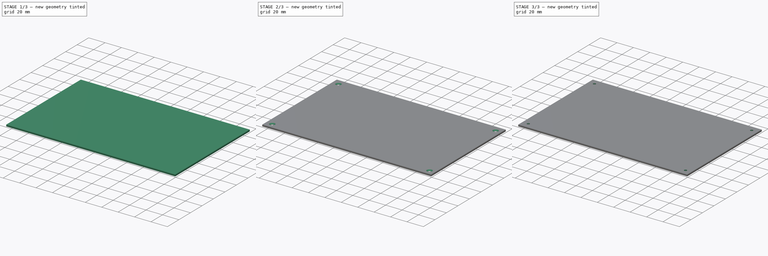
[diagram: build sequence overview — one tinted view per stage of 3, left to right]
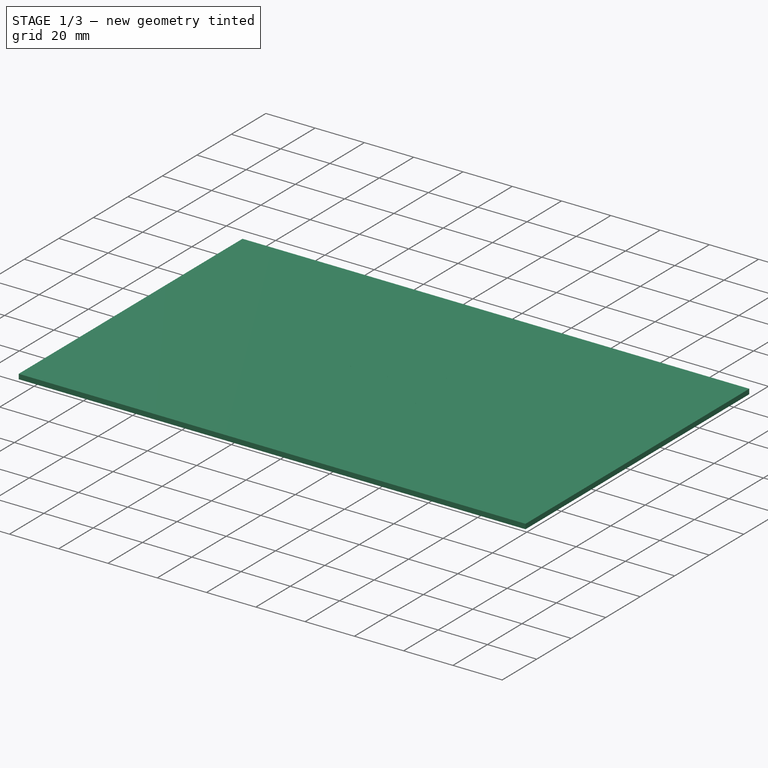
[diagram: stage 1 of 3 — iso view after this stage's code; geometry added in this stage tinted green]
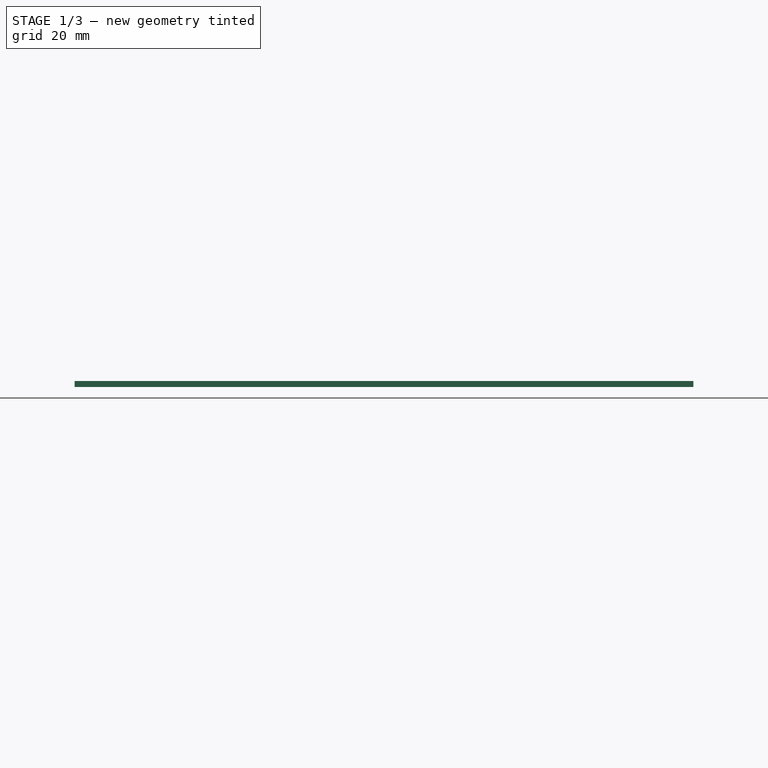
[diagram: stage 1 of 3 — front view after this stage's code; geometry added in this stage tinted green]
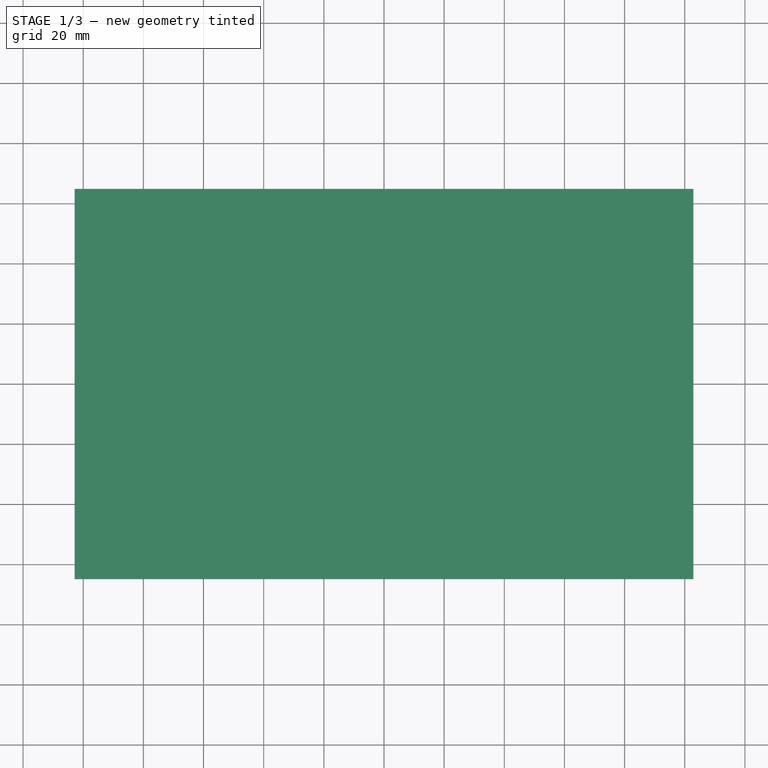
[diagram: stage 1 of 3 — top view after this stage's code; geometry added in this stage tinted green]
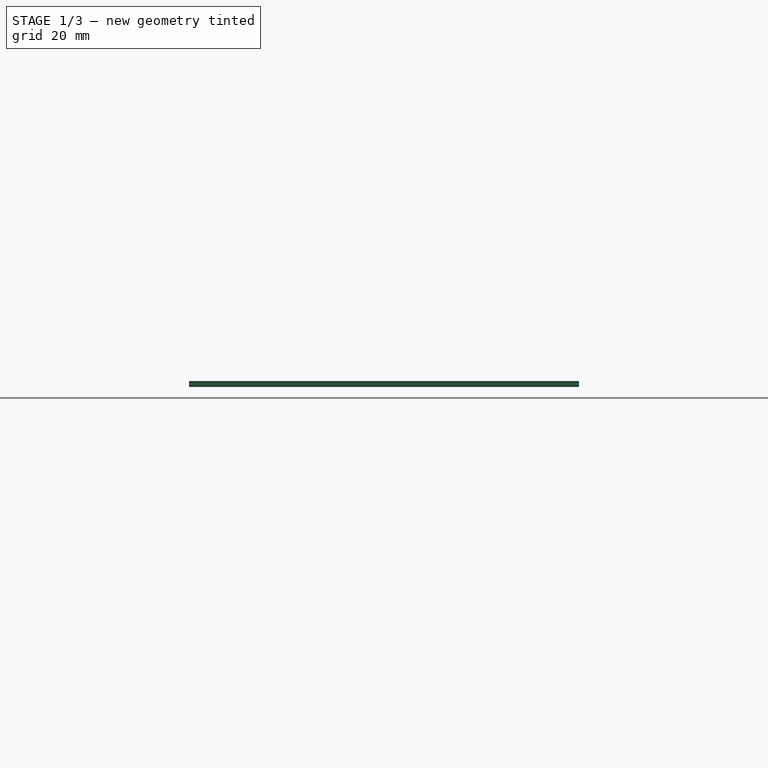
[diagram: stage 1 of 3 — right view after this stage's code; geometry added in this stage tinted green]
FCSTD DOCUMENT  (FreeCAD 0.20R29410 (Git))
Label: PC-11491
License: All rights reserved
LicenseURL: http://en.wikipedia.org/wiki/All_rights_reserved
objects: Sketcher::SketchObject×4, PartDesign::Pad×2, PartDesign::Body×2, PartDesign::Hole×1, PartDesign::Fillet×1, PartDesign::Chamfer×1, PartDesign::Pocket×1
note: 18 computed .brp shape members not serialized (recipe doc carries the construction recipe); baked Part::Feature solids carry a one-line shape summary decoded from their .brp

FEATURE [Sketcher::SketchObject] Sketch  label="Face"
  FullyConstrained = true
  MapMode = 5
  Support = -> [XY_Plane]
  sketch-geometry (4):
    g0: LineSegment StartX=-102.85 StartY=64.85 StartZ=0 EndX=102.85 EndY=64.85 EndZ=0
    g1: LineSegment StartX=-102.85 StartY=64.85 StartZ=0 EndX=-102.85 EndY=-64.85 EndZ=0
    g2: LineSegment StartX=-102.85 StartY=-64.85 StartZ=0 EndX=102.85 EndY=-64.85 EndZ=0
    g3: LineSegment StartX=102.85 StartY=-64.85 StartZ=0 EndX=102.85 EndY=64.85 EndZ=0
  constraints (11):
    c: Horizontal(g2)
    c: Coincident(g0,g1)
    c: Coincident(g1,g2)
    c: Coincident(g2,g3)
    c: Coincident(g3,g0)
    c: Vertical(g3)
    c: Vertical(g1)
    c: Horizontal(g0)
    c: DistanceX(g0,g0) = 205.7  'PlateWidth'
    c: DistanceY(g1,g0) = 129.7  'PlateHeight'
    c: Symmetric(g0,g2,g-1)
FEATURE [PartDesign::Pad] Pad  label="Panel"
  Direction = (0,0,1)
  Length = 2
  Length2 = 10
  Profile = -> Sketch
  ReferenceAxis = -> Sketch [N_Axis]
  Type = 0
FEATURE [PartDesign::Body] Body
  Group = -> [Sketch,Pad,Sketch001,Hole,Fillet,Chamfer,Sketch002,Pocket]
  Origin = -> Origin
  Tip = -> Pocket
FEATURE [Sketcher::SketchObject] Sketch003
  FullyConstrained = true
  MapMode = 5
  Support = -> [XY_Plane001]
  sketch-geometry (19):
    g0: LineSegment StartX=-26.69 StartY=24.13 StartZ=0 EndX=26.69 EndY=24.13 EndZ=0
    g1: LineSegment StartX=26.69 StartY=24.13 StartZ=0 EndX=26.69 EndY=-24.13 EndZ=0
    g2: LineSegment StartX=26.69 StartY=-24.13 StartZ=0 EndX=-26.69 EndY=-24.13 EndZ=0
    g3: LineSegment StartX=-26.69 StartY=-24.13 StartZ=0 EndX=-26.69 EndY=24.13 EndZ=0
    g4: Circle CenterX=-17.4 CenterY=20 CenterZ=0 NormalX=0 NormalY=0 NormalZ=1 AngleXU=0 Radius=1.4
    g5: Circle CenterX=-7.42 CenterY=20 CenterZ=0 NormalX=0 NormalY=0 NormalZ=1 AngleXU=0 Radius=1.5
    g6: Circle CenterX=0 CenterY=20 CenterZ=0 NormalX=0 NormalY=0 NormalZ=1 AngleXU=0 Radius=1.6
    g7: Circle CenterX=-17.4 CenterY=-14 CenterZ=0 NormalX=0 NormalY=0 NormalZ=1 AngleXU=0 Radius=5.875
    g8: Circle CenterX=0 CenterY=-14 CenterZ=0 NormalX=0 NormalY=0 NormalZ=1 AngleXU=0 Radius=6
    g9: Circle CenterX=17.4 CenterY=-14 CenterZ=0 NormalX=0 NormalY=0 NormalZ=1 AngleXU=0 Radius=6.125
    g10: Circle CenterX=4.6 CenterY=11 CenterZ=0 NormalX=0 NormalY=0 NormalZ=1 AngleXU=0 Radius=3.4
    g11: Circle CenterX=17.4 CenterY=11 CenterZ=0 NormalX=0 NormalY=0 NormalZ=1 AngleXU=0 Radius=3.5
    g12: Circle CenterX=-17.4 CenterY=0 CenterZ=0 NormalX=0 NormalY=0 NormalZ=1 AngleXU=0 Radius=3.6
    g13: Circle CenterX=0 CenterY=0 CenterZ=0 NormalX=0 NormalY=0 NormalZ=1 AngleXU=0 Radius=3.75
    g14: Circle CenterX=17.4 CenterY=0 CenterZ=0 NormalX=0 NormalY=0 NormalZ=1 AngleXU=0 Radius=3.885
    g15: Circle CenterX=-6.4 CenterY=11 CenterZ=0 NormalX=0 NormalY=0 NormalZ=1 AngleXU=0 Radius=3.3
    g16: Circle CenterX=7.97 CenterY=20 CenterZ=0 NormalX=0 NormalY=0 NormalZ=1 AngleXU=0 Radius=2.4
    g17: Circle CenterX=17.4 CenterY=20 CenterZ=0 NormalX=0 NormalY=0 NormalZ=1 AngleXU=0 Radius=2.5
    g18: Circle CenterX=-17.4 CenterY=11 CenterZ=0 NormalX=0 NormalY=0 NormalZ=1 AngleXU=0 Radius=2.6
  constraints (55):
    c: Coincident(g0,g1)
    c: Coincident(g1,g2)
    c: Coincident(g2,g3)
    c: Coincident(g3,g0)
    c: Horizontal(g0)
    c: Horizontal(g2)
    c: Vertical(g1)
    c: Vertical(g3)
    c: Diameter(g4) = 2.8
    c: Diameter(g5) = 3
    c: Diameter(g6) = 3.2
    c: Diameter(g7) = 11.75
    c: Diameter(g8) = 12
    c: Diameter(g9) = 12.25
    c: Diameter(g10) = 6.8
    c: Diameter(g11) = 7
    c: Diameter(g12) = 7.2
    c: Diameter(g13) = 7.5
    c: Diameter(g14) = 7.77
    c: Diameter(g15) = 6.6
    c: Diameter(g16) = 4.8
    c: Diameter(g17) = 5
    c: Diameter(g18) = 5.2
    c: Horizontal(g4,g5)
    c: Horizontal(g5,g6)
    c: Horizontal(g6,g16)
    c: Horizontal(g16,g17)
    c: Horizontal(g18,g15)
    c: Horizontal(g15,g10)
    c: Horizontal(g10,g11)
    c: Horizontal(g12,g13)
    c: Horizontal(g13,g14)
    c: Horizontal(g7,g8)
    c: Horizontal(g8,g9)
    c: Vertical(g4,g18)
    c: Vertical(g18,g12)
    c: Vertical(g12,g7)
    c: Vertical(g6,g13)
    c: Vertical(g13,g8)
    c: Vertical(g17,g11)
    c: Vertical(g11,g14)
    c: Vertical(g9,g14)
    c: DistanceX(g7,g8) = 17.4
    c: DistanceX(g8,g9) = 17.4
    c: DistanceY(g7,g12) = 14
    c: DistanceY(g12,g18) = 11
    c: DistanceY(g18,g4) = 9
    c: Coincident(g13,g-1)
    c: DistanceX(g18,g15) = 11
    c: DistanceX(g15,g10) = 11
    c: DistanceX(g4,g5) = 9.98
    c: DistanceX(g6,g16) = 7.97
    c: Symmetric(g0,g1,g13)
    c: DistanceX(g0,g0) = 53.38
    c: DistanceY(g2,g0) = 48.26
FEATURE [PartDesign::Pad] Pad001
  Direction = (0,0,1)
  Length = 2
  Length2 = 10
  Profile = -> Sketch003
  ReferenceAxis = -> Sketch003 [N_Axis]
  Type = 0
FEATURE [PartDesign::Body] Body001  label="TestHoles"
  Group = -> [Sketch003,Pad001]
  Origin = -> Origin001
  Tip = -> Pad001
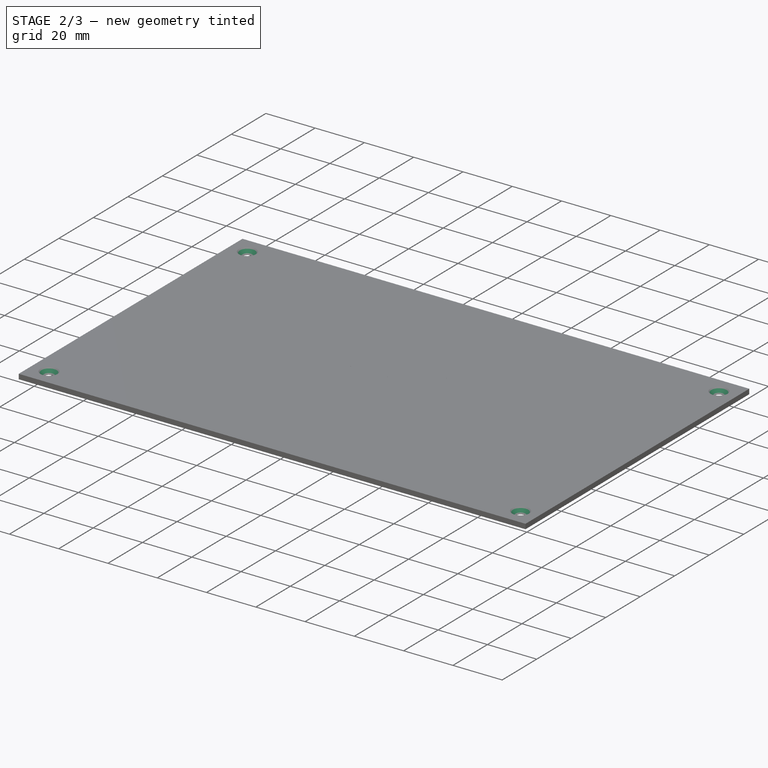
[diagram: stage 2 of 3 — iso view after this stage's code; geometry added in this stage tinted green]
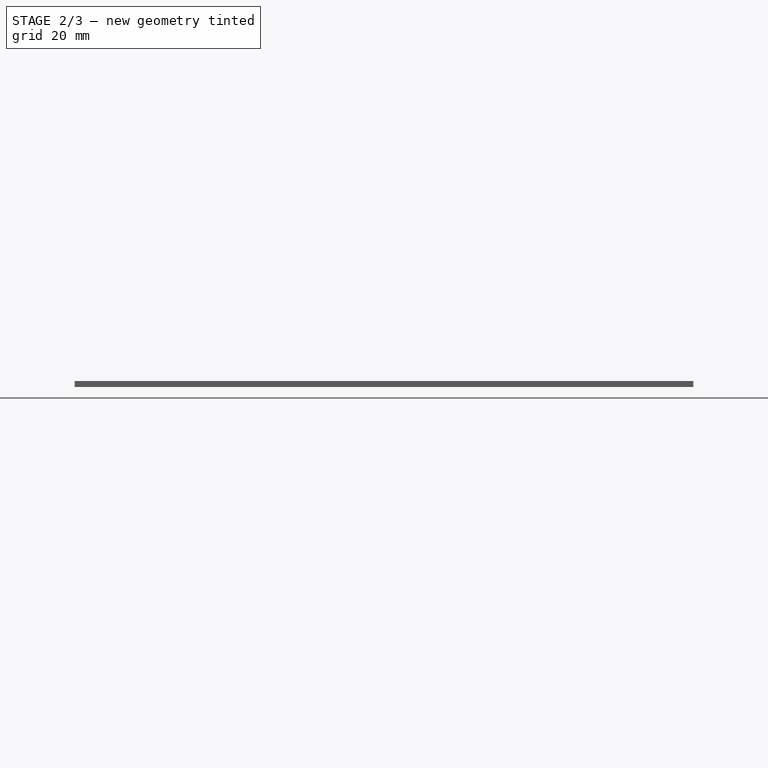
[diagram: stage 2 of 3 — front view after this stage's code; geometry added in this stage tinted green]
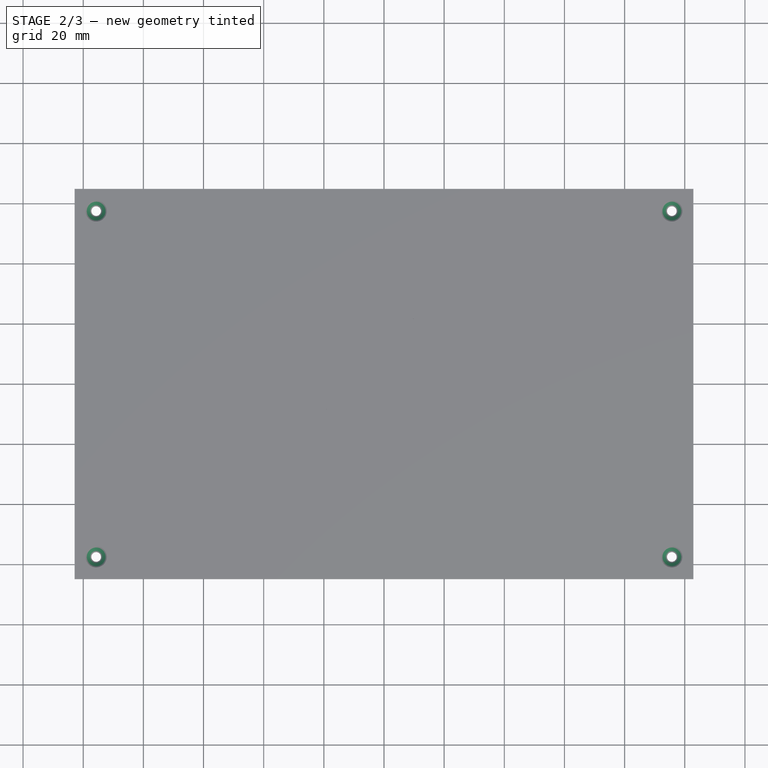
[diagram: stage 2 of 3 — top view after this stage's code; geometry added in this stage tinted green]
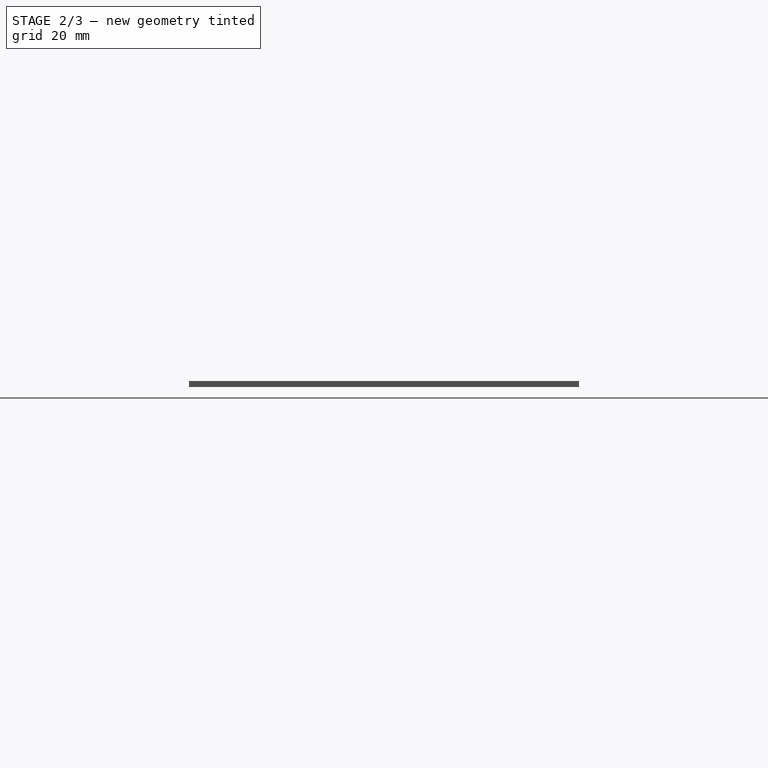
[diagram: stage 2 of 3 — right view after this stage's code; geometry added in this stage tinted green]
FEATURE [Sketcher::SketchObject] Sketch001  label="Screws"
  FullyConstrained = true
  MapMode = 5
  Placement = pos=(0,0,2) rot=(0,0,1;0rad)
  Support = -> [Pad]
  sketch-geometry (4):
    g0: Circle CenterX=-95.7 CenterY=-57.5 CenterZ=0 NormalX=0 NormalY=0 NormalZ=1 AngleXU=0 Radius=1.6
    g1: Circle CenterX=-95.7 CenterY=57.5 CenterZ=0 NormalX=0 NormalY=0 NormalZ=1 AngleXU=0 Radius=1.6
    g2: Circle CenterX=95.7 CenterY=57.5 CenterZ=0 NormalX=0 NormalY=0 NormalZ=1 AngleXU=0 Radius=1.6
    g3: Circle CenterX=95.7 CenterY=-57.5 CenterZ=0 NormalX=0 NormalY=0 NormalZ=1 AngleXU=0 Radius=1.6
  constraints (11):
    c: Diameter(g0) = 3.2  'ScrewHoleDiameter'
    c: Equal(g1,g2)
    c: Equal(g2,g3)
    c: Equal(g3,g0)
    c: DistanceY(g0,g1) = 115  'ScrewHeight'
    c: Vertical(g1,g0)
    c: DistanceX(g1,g2) = 191.4  'ScrewWidth'
    c: Horizontal(g1,g2)
    c: Vertical(g2,g3)
    c: Horizontal(g3,g0)
    c: Symmetric(g1,g3,g-1)
FEATURE [PartDesign::Hole] Hole  label="ScrewHoles"
  BaseFeature = -> Pad
  CustomThreadClearance = 0
  Depth = 25
  DepthType = 0
  Diameter = 3.2
  DrillForDepth = false
  DrillPoint = 1
  DrillPointAngle = 118
  HoleCutCountersinkAngle = 90
  HoleCutCustomValues = false
  HoleCutDepth = 0
  HoleCutDiameter = 6.1
  HoleCutType = 0
  ModelThread = false
  Profile = -> Sketch001
  Tapered = false
  TaperedAngle = 90
  ThreadClass = 0
  ThreadDepth = 25
  ThreadDepthType = 0
  ThreadDirection = 0
  ThreadFit = 0
  ThreadSize = 0
  ThreadType = 0
  Threaded = false
  UseCustomThreadClearance = false
FEATURE [PartDesign::Chamfer] Chamfer  label="ScrewHoleChamfer"
  Angle = 45
  Base = -> Hole [Edge19,Edge17,Edge18,Edge20]
  BaseFeature = -> Hole
  ChamferType = 0
  FlipDirection = false
  Size = 1.9
  Size2 = 1
  SupportTransform = false
  UseAllEdges = false
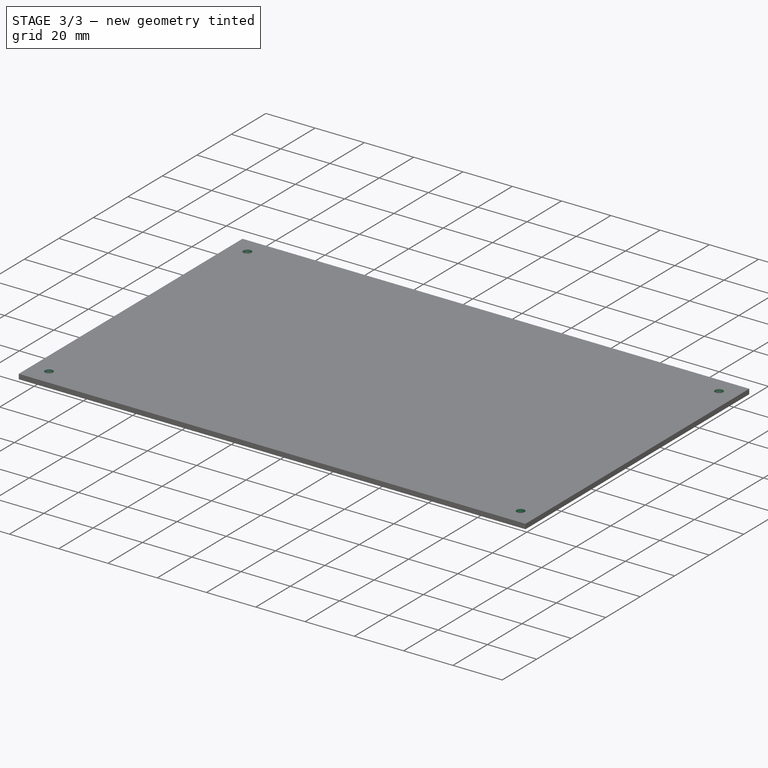
[diagram: stage 3 of 3 — iso view after this stage's code; geometry added in this stage tinted green]
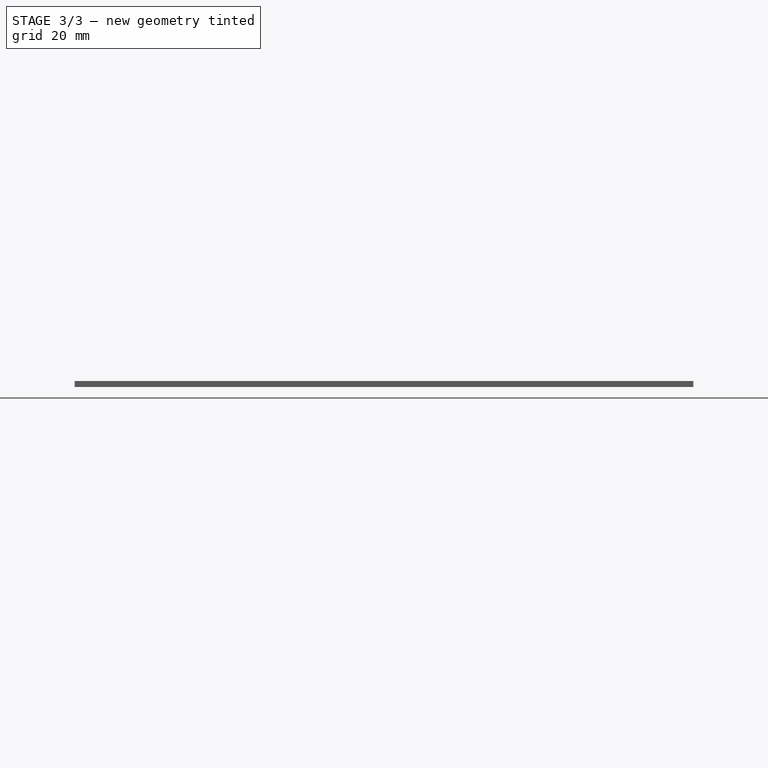
[diagram: stage 3 of 3 — front view after this stage's code; geometry added in this stage tinted green]
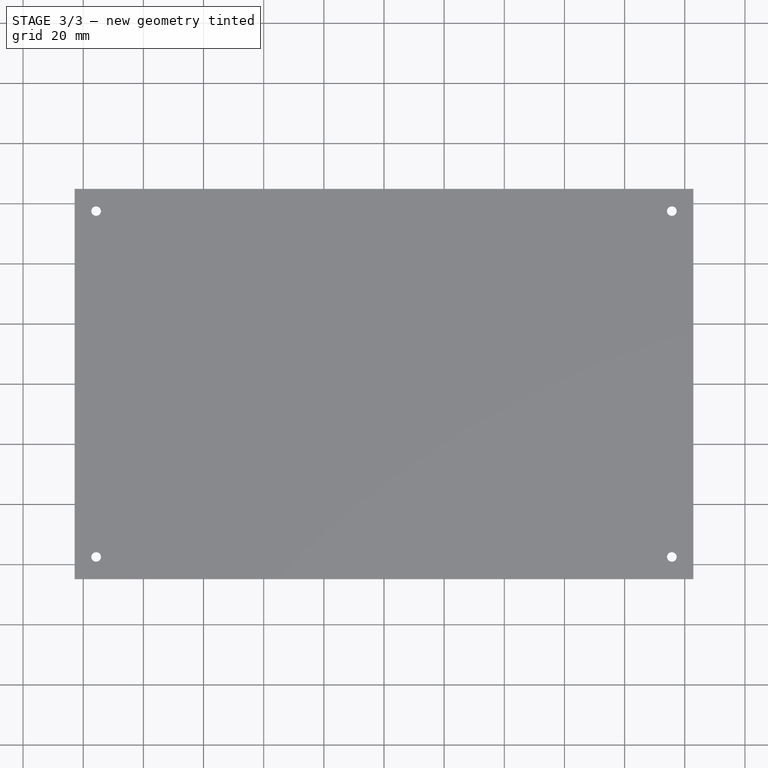
[diagram: stage 3 of 3 — top view after this stage's code; geometry added in this stage tinted green]
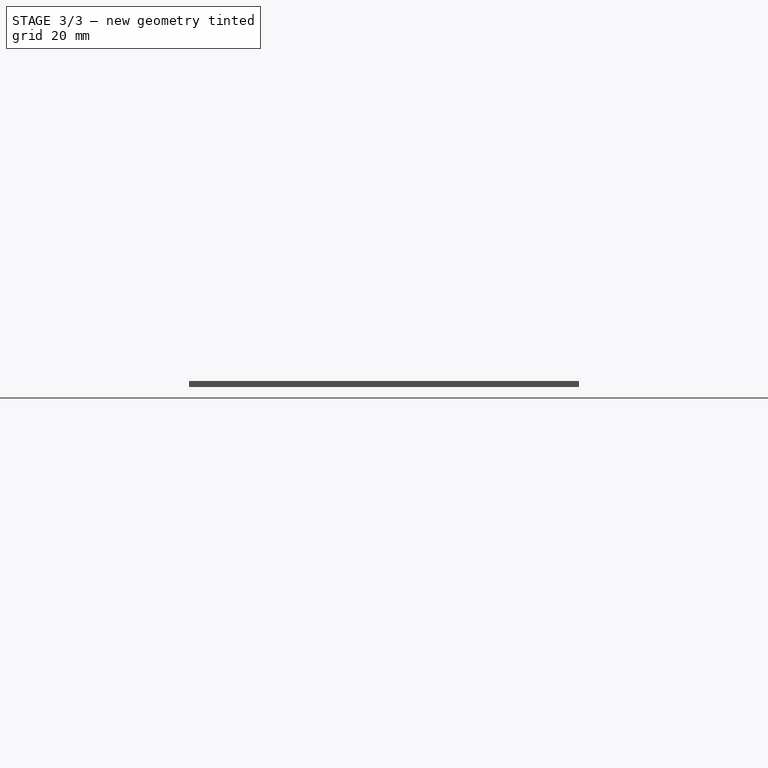
[diagram: stage 3 of 3 — right view after this stage's code; geometry added in this stage tinted green]
FEATURE [PartDesign::Fillet] Fillet  label="BoardEdgeFillet"
  Base = -> Hole [Edge4,Edge10,Edge13,Edge7]
  BaseFeature = -> Hole
  Radius = 1
  SupportTransform = false
  UseAllEdges = false
FEATURE [Sketcher::SketchObject] Sketch002  label="Components"
  FullyConstrained = true
  MapMode = 5
  Support = -> [XY_Plane]
  sketch-geometry (32):
    g0: Circle CenterX=-86 CenterY=40 CenterZ=0 NormalX=0 NormalY=0 NormalZ=1 AngleXU=0 Radius=6
    g1: Circle CenterX=-62 CenterY=40 CenterZ=0 NormalX=0 NormalY=0 NormalZ=1 AngleXU=0 Radius=6
    g2: Circle CenterX=-38 CenterY=40 CenterZ=0 NormalX=0 NormalY=0 NormalZ=1 AngleXU=0 Radius=6
    g3: Circle CenterX=-14 CenterY=40 CenterZ=0 NormalX=0 NormalY=0 NormalZ=1 AngleXU=0 Radius=6
    g4: Circle CenterX=-86 CenterY=0 CenterZ=0 NormalX=0 NormalY=0 NormalZ=1 AngleXU=0 Radius=6
    g5: Circle CenterX=-62 CenterY=0 CenterZ=0 NormalX=0 NormalY=0 NormalZ=1 AngleXU=0 Radius=6
    g6: Circle CenterX=-38 CenterY=0 CenterZ=0 NormalX=0 NormalY=0 NormalZ=1 AngleXU=0 Radius=6
    g7: Circle CenterX=-14 CenterY=0 CenterZ=0 NormalX=0 NormalY=0 NormalZ=1 AngleXU=0 Radius=6
    g8: Circle CenterX=20 CenterY=48.5 CenterZ=0 NormalX=0 NormalY=0 NormalZ=1 AngleXU=0 Radius=2.5
    g9: Circle CenterX=35 CenterY=48.5 CenterZ=0 NormalX=0 NormalY=0 NormalZ=1 AngleXU=0 Radius=2.5
    g10: Circle CenterX=50 CenterY=48.5 CenterZ=0 NormalX=0 NormalY=0 NormalZ=1 AngleXU=0 Radius=2.5
    g11: Circle CenterX=65 CenterY=48.5 CenterZ=0 NormalX=0 NormalY=0 NormalZ=1 AngleXU=0 Radius=2.5
    g12: Circle CenterX=80 CenterY=48.5 CenterZ=0 NormalX=0 NormalY=0 NormalZ=1 AngleXU=0 Radius=2.5
    g13: Circle CenterX=20 CenterY=31.5 CenterZ=0 NormalX=0 NormalY=0 NormalZ=1 AngleXU=0 Radius=2.5
    g14: Circle CenterX=35 CenterY=31.5 CenterZ=0 NormalX=0 NormalY=0 NormalZ=1 AngleXU=0 Radius=2.5
    g15: Circle CenterX=50 CenterY=31.5 CenterZ=0 NormalX=0 NormalY=0 NormalZ=1 AngleXU=0 Radius=2.5
    g16: Circle CenterX=65 CenterY=31.5 CenterZ=0 NormalX=0 NormalY=0 NormalZ=1 AngleXU=0 Radius=2.5
    g17: Circle CenterX=80 CenterY=31.5 CenterZ=0 NormalX=0 NormalY=0 NormalZ=1 AngleXU=0 Radius=2.5
    g18: GeomPoint X=50 Y=0 Z=0
    g19: LineSegment StartX=14.4 StartY=12.1 StartZ=0 EndX=85.6 EndY=12.1 EndZ=0
    g20: LineSegment StartX=85.6 StartY=12.1 StartZ=0 EndX=85.6 EndY=-12.1 EndZ=0
    g21: LineSegment StartX=85.6 StartY=-12.1 StartZ=0 EndX=14.4 EndY=-12.1 EndZ=0
    g22: LineSegment StartX=14.4 StartY=-12.1 StartZ=0 EndX=14.4 EndY=12.1 EndZ=0
    g23: Circle CenterX=-86 CenterY=-40 CenterZ=0 NormalX=0 NormalY=0 NormalZ=1 AngleXU=0 Radius=3.4
    g24: Circle CenterX=-62 CenterY=-40 CenterZ=0 NormalX=0 NormalY=0 NormalZ=1 AngleXU=0 Radius=3.4
    g25: Circle CenterX=-38 CenterY=-40 CenterZ=0 NormalX=0 NormalY=0 NormalZ=1 AngleXU=0 Radius=3.4
    g26: Circle CenterX=-14 CenterY=-40 CenterZ=0 NormalX=0 NormalY=0 NormalZ=1 AngleXU=0 Radius=3.4
    g27: Circle CenterX=10 CenterY=-40 CenterZ=0 NormalX=0 NormalY=0 NormalZ=1 AngleXU=0 Radius=3.4
    g28: Circle CenterX=34 CenterY=-40 CenterZ=0 NormalX=0 NormalY=0 NormalZ=1 AngleXU=0 Radius=3.4
    g29: Circle CenterX=58 CenterY=-40 CenterZ=0 NormalX=0 NormalY=0 NormalZ=1 AngleXU=0 Radius=3.4
    g30: Circle CenterX=82 CenterY=-40 CenterZ=0 NormalX=0 NormalY=0 NormalZ=1 AngleXU=0 Radius=3.4
    g31: GeomPoint X=20 Y=40 Z=0
  constraints (92):
    c: Horizontal(g0,g1)
    c: Horizontal(g1,g2)
    c: Horizontal(g2,g3)
    c: DistanceX(g0,g1) = 24
    c: DistanceX(g1,g2) = 24
    c: DistanceX(g2,g3) = 24
    c: Equal(g0,g1)
    c: Equal(g1,g2)
    c: Equal(g2,g3)
    c: Equal(g6,g5)
    c: Equal(g5,g4)
    c: Horizontal(g4,g5)
    c: Horizontal(g5,g6)
    c: Horizontal(g6,g7)
    c: Vertical(g4,g0)
    c: Vertical(g5,g1)
    c: Vertical(g6,g2)
    c: Vertical(g7,g3)
    c: Diameter(g0) = 12  'ToggleSwitchHoleDiameter'
    c: DistanceY(g4,g0) = 40
    c: Diameter(g8) = 5
    c: Equal(g8,g9)
    c: Equal(g9,g10)
    c: Equal(g10,g11)
    c: Equal(g11,g12)
    c: Horizontal(g8,g9)
    c: Horizontal(g9,g10)
    c: Horizontal(g10,g11)
    c: Horizontal(g11,g12)
    c: DistanceX(g8,g9) = 15
    c: DistanceX(g9,g10) = 15
    c: DistanceX(g10,g11) = 15
    c: DistanceX(g11,g12) = 15
    c: Equal(g14,g15)
    c: Horizontal(g13,g14)
    c: Horizontal(g14,g15)
    c: Horizontal(g15,g16)
    c: Horizontal(g16,g17)
    c: Vertical(g8,g13)
    c: Vertical(g14,g9)
    c: Vertical(g10,g15)
    c: Vertical(g11,g16)
    c: Vertical(g12,g17)
    c: DistanceY(g13,g8) = 17
    c: Coincident(g19,g20)
    c: Coincident(g20,g21)
    c: Coincident(g21,g22)
    c: Coincident(g22,g19)
    c: Horizontal(g19)
    c: Horizontal(g21)
    c: Vertical(g20)
    c: Vertical(g22)
    c: Symmetric(g19,g20,g18)
    c: DistanceX(g19,g19) = 71.2  'LCDWidth'
    c: DistanceY(g21,g19) = 24.2  'LCDHeight'
    c: Vertical(g18,g15)
    c: Horizontal(g18,g-1)
    c: DistanceX(g-1,g18) = 50
    c: DistanceX(g7,g-1) = 14
    c: Equal(g0,g4)
    c: Horizontal(g7,g-1)
    c: Diameter(g23) = 6.8
    c: Equal(g23,g24)
    c: Horizontal(g23,g24)
    c: Horizontal(g24,g25)
    c: Horizontal(g25,g26)
    c: Vertical(g4,g23)
    c: Vertical(g5,g24)
    c: Vertical(g6,g25)
    c: Vertical(g7,g26)
    c: DistanceY(g23,g4) = 40
    c: Horizontal(g26,g27)
    c: Horizontal(g27,g28)
    c: Horizontal(g28,g29)
    c: Horizontal(g29,g30)
    c: DistanceX(g27,g28) = 24
    c: DistanceX(g28,g29) = 24
    c: DistanceX(g29,g30) = 24
    c: Symmetric(g8,g13,g31)
    c: Horizontal(g3,g31)
    c: DistanceX(g26,g27) = 24
    c: Equal(g15,g16)
    c: Equal(g16,g17)
    c: Equal(g14,g13)
    c: Equal(g24,g25)
    c: Equal(g25,g26)
    c: Equal(g26,g27)
    c: Equal(g27,g28)
    c: Equal(g28,g29)
    c: Equal(g29,g30)
    c: Equal(g6,g7)
    c: Equal(g8,g13)
FEATURE [PartDesign::Pocket] Pocket  label="ComponentHoles"
  BaseFeature = -> Chamfer
  Direction = (0,0,-1)
  Length = 5
  Length2 = 5
  Profile = -> Sketch002
  ReferenceAxis = -> Sketch002 [N_Axis]
  Reversed = true
  Type = 1
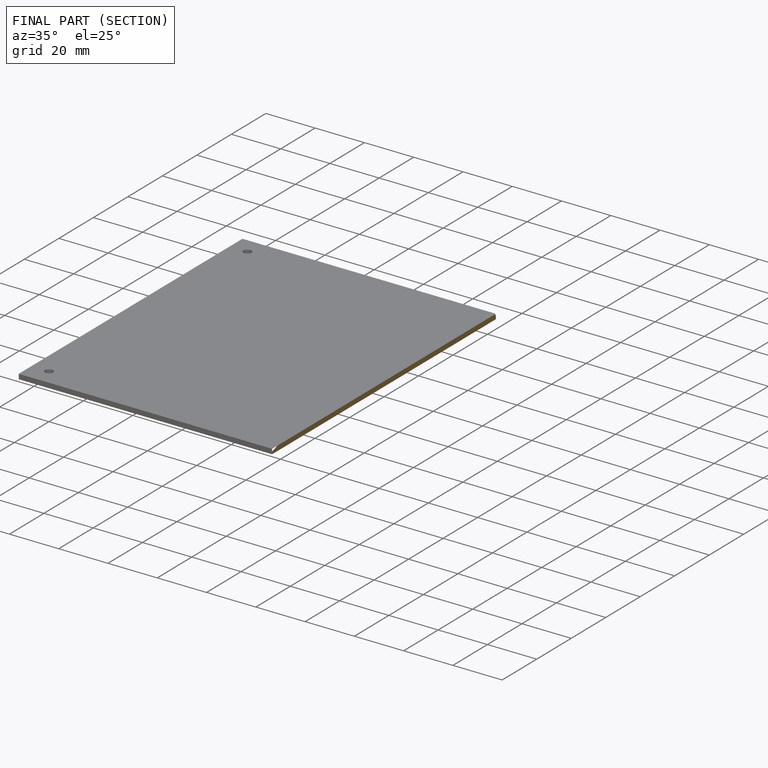
[diagram: finished part — half-section view (interior)]
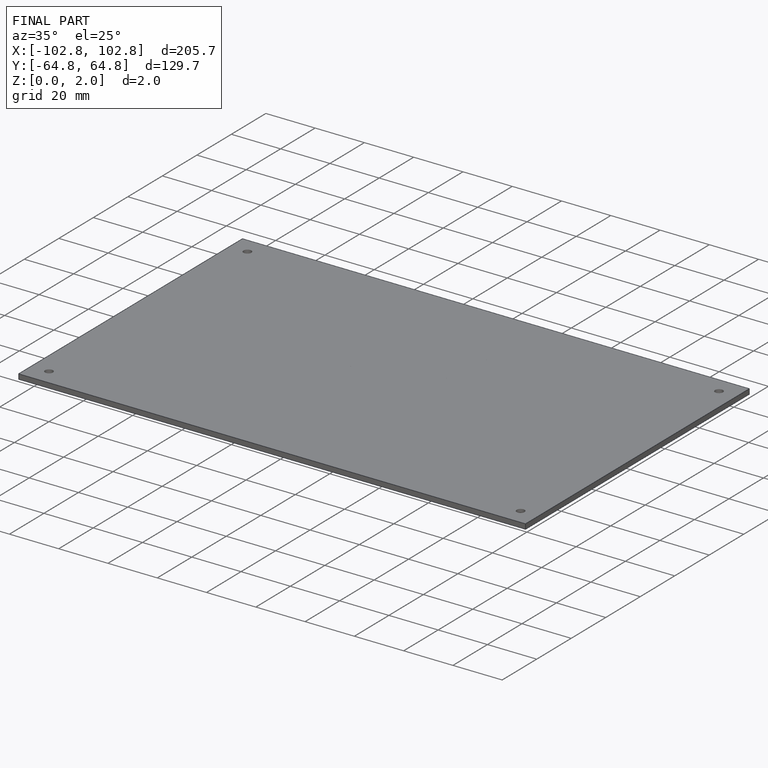
[diagram: finished part — iso view with bounding-box wireframe]
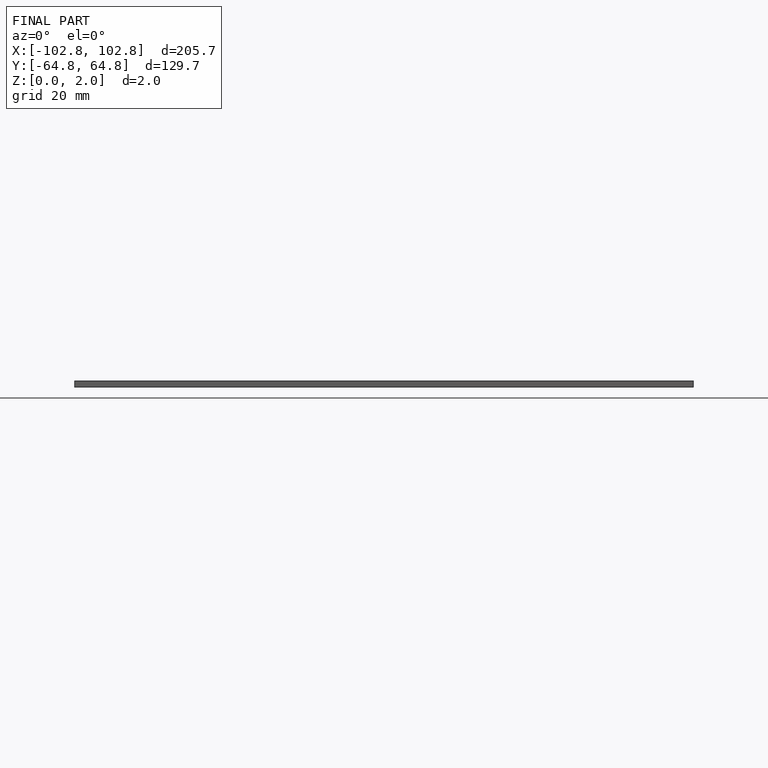
[diagram: finished part — front view with bounding-box wireframe]
